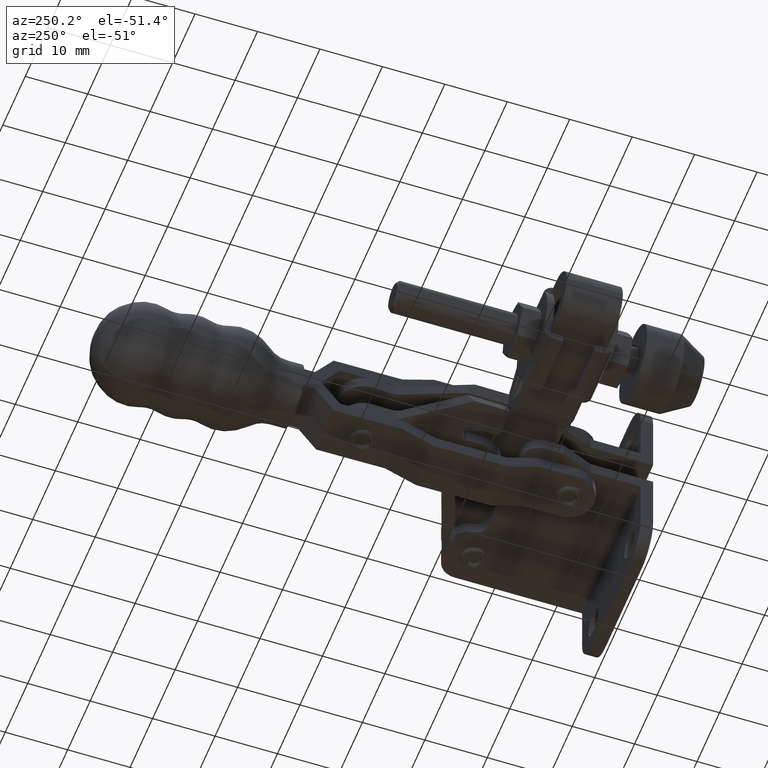
[diagram: clean part render]
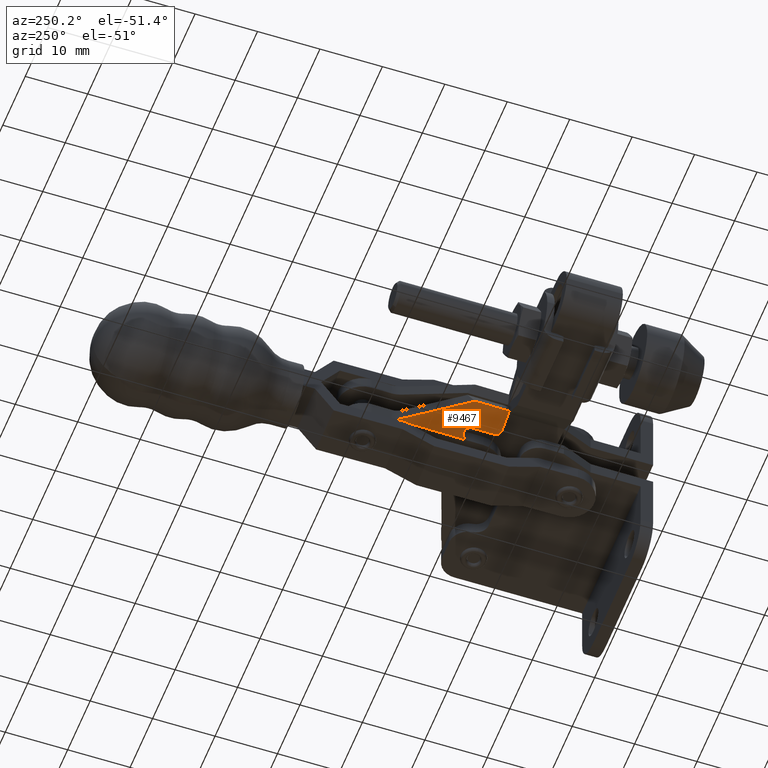
[diagram: same view with one face highlighted and labeled with its STEP entity id]
A machine part, auxiliary view. The second image highlights one B-rep face of the part: STEP entity #9467.
In plain terms, the highlighted planar face has unit normal (0.3161, 0.0037, 0.9487).
Its self-contained STEP definition (entity closure, byte-faithful):
#95 = VERTEX_POINT ( 'NONE', #10009 ) ;
#97 =( BOUNDED_CURVE ( )  B_SPLINE_CURVE ( 3, ( #367, #407, #1262, #7343 ),
 .UNSPECIFIED., .F., .F. ) 
 B_SPLINE_CURVE_WITH_KNOTS ( ( 4, 4 ),
 ( 6.132617034399753900, 7.853981633974481000 ),
 .UNSPECIFIED. ) 
 CURVE ( )  GEOMETRIC_REPRESENTATION_ITEM ( )  RATIONAL_B_SPLINE_CURVE ( ( 1.000000000000000000, 0.7679468270127151100, 0.7679468270127151100, 1.000000000000000000 ) ) 
 REPRESENTATION_ITEM ( '' )  );
#147 = VECTOR ( 'NONE', #5160, 1000.000000000000100 ) ;
#367 = CARTESIAN_POINT ( 'NONE',  ( -27.49085013601326800, 26.18925056405810300, -5.333525268372822500 ) ) ;
#407 = CARTESIAN_POINT ( 'NONE',  ( -27.38443487788737900, 25.53962755610695000, -5.366429856938606400 ) ) ;
#467 = VERTEX_POINT ( 'NONE', #4503 ) ;
#711 = EDGE_CURVE ( 'NONE', #10966, #95, #5723, .T. ) ;
#839 = EDGE_CURVE ( 'NONE', #95, #8263, #8077, .T. ) ;
#864 = ORIENTED_EDGE ( 'NONE', *, *, #839, .T. ) ;
#1136 = ORIENTED_EDGE ( 'NONE', *, *, #3941, .T. ) ;
#1262 = CARTESIAN_POINT ( 'NONE',  ( -27.80766165270407700, 25.03543180374507700, -5.223422074994987300 ) ) ;
#1410 = ORIENTED_EDGE ( 'NONE', *, *, #7403, .T. ) ;
#1540 = CARTESIAN_POINT ( 'NONE',  ( -28.46589711249520600, 25.02766397939934300, -5.004058151227636300 ) ) ;
#1580 = CARTESIAN_POINT ( 'NONE',  ( -25.55412023877966400, 31.56247839332357300, -6.000000000002127200 ) ) ;
#2009 = VERTEX_POINT ( 'NONE', #8705 ) ;
#2584 = LINE ( 'NONE', #9673, #6901 ) ;
#2954 =( BOUNDED_CURVE ( )  B_SPLINE_CURVE ( 3, ( #8575, #1580, #4262, #10319 ),
 .UNSPECIFIED., .F., .F. ) 
 B_SPLINE_CURVE_WITH_KNOTS ( ( 4, 4 ),
 ( 6.533705053445050400E-016, 3.141592653588374700 ),
 .UNSPECIFIED. ) 
 CURVE ( )  GEOMETRIC_REPRESENTATION_ITEM ( )  RATIONAL_B_SPLINE_CURVE ( ( 1.000000000000000000, 0.3333333333338063300, 0.3333333333338063300, 1.000000000000000000 ) ) 
 REPRESENTATION_ITEM ( '' )  );
#3091 = CARTESIAN_POINT ( 'NONE',  ( -26.05874778953679900, 40.25088109058419400, -5.866015959647136800 ) ) ;
#3193 = ORIENTED_EDGE ( 'NONE', *, *, #711, .T. ) ;
#3195 = AXIS2_PLACEMENT_3D ( 'NONE', #4274, #5189, #11212 ) ;
#3207 = EDGE_CURVE ( 'NONE', #6747, #10966, #4230, .T. ) ;
#3433 = PLANE ( 'NONE',  #3195 ) ;
#3468 = ORIENTED_EDGE ( 'NONE', *, *, #7693, .T. ) ;
#3713 = DIRECTION ( 'NONE',  ( 0.01180015965535061200, -0.9999303756922819400, -3.621841566730173300E-016 ) ) ;
#3853 = CARTESIAN_POINT ( 'NONE',  ( -25.53051991946892900, 29.56261764193666500, -5.999999999999851700 ) ) ;
#3920 = VECTOR ( 'NONE', #11175, 1000.000000000000100 ) ;
#3941 = EDGE_CURVE ( 'NONE', #7362, #2009, #10827, .T. ) ;
#4230 = LINE ( 'NONE', #4770, #147 ) ;
#4262 = CARTESIAN_POINT ( 'NONE',  ( -27.55398099016659300, 31.53887807401426700, -5.333525268373767500 ) ) ;
#4274 = CARTESIAN_POINT ( 'NONE',  ( -25.75932501519302800, 48.95126762661198700, -5.999999999999843700 ) ) ;
#4437 = CARTESIAN_POINT ( 'NONE',  ( -25.75932501519302800, 48.95126762661198700, -5.999999999999843700 ) ) ;
#4497 = VECTOR ( 'NONE', #4506, 1000.000000000000200 ) ;
#4503 = CARTESIAN_POINT ( 'NONE',  ( -27.53038067085869400, 29.53901732262732000, -5.333525268372813600 ) ) ;
#4506 = DIRECTION ( 'NONE',  ( 0.01180015965535061200, -0.9999303756922819400, -3.621841566730173300E-016 ) ) ;
#4770 = CARTESIAN_POINT ( 'NONE',  ( -22.36316550384521300, 46.82842373696998100, -7.123300892087973700 ) ) ;
#4950 = CARTESIAN_POINT ( 'NONE',  ( -26.05874778953679900, 40.25088109058419400, -5.866015959647136800 ) ) ;
#5160 = DIRECTION ( 'NONE',  ( 0.4831666188577185600, 0.8599589442647021000, -0.1643795382665957100 ) ) ;
#5189 = DIRECTION ( 'NONE',  ( 0.3161238125396767500, 0.003730571197262970900, 0.9487106081329129700 ) ) ;
#5334 = DIRECTION ( 'NONE',  ( 0.01180015965535074000, -0.9999303756922819400, -4.053240582812141400E-016 ) ) ;
#5493 = ORIENTED_EDGE ( 'NONE', *, *, #3207, .T. ) ;
#5723 =( BOUNDED_CURVE ( )  B_SPLINE_CURVE ( 3, ( #4950, #9971, #11071, #6135 ),
 .UNSPECIFIED., .F., .F. ) 
 B_SPLINE_CURVE_WITH_KNOTS ( ( 4, 4 ),
 ( 5.759490480378332200, 6.283185307179586200 ),
 .UNSPECIFIED. ) 
 CURVE ( )  GEOMETRIC_REPRESENTATION_ITEM ( )  RATIONAL_B_SPLINE_CURVE ( ( 1.000000000000000000, 0.9772755968232163000, 0.9772755968232163000, 1.000000000000000000 ) ) 
 REPRESENTATION_ITEM ( '' )  );
#5752 = VECTOR ( 'NONE', #3713, 1000.000000000000200 ) ;
#6135 = CARTESIAN_POINT ( 'NONE',  ( -25.67441108991050000, 41.75577064332021100, -5.999999999999847200 ) ) ;
#6747 = VERTEX_POINT ( 'NONE', #10217 ) ;
#6901 = VECTOR ( 'NONE', #5334, 1000.000000000000100 ) ;
#6949 = EDGE_CURVE ( 'NONE', #6747, #2009, #11105, .T. ) ;
#7238 = FACE_OUTER_BOUND ( 'NONE', #7418, .T. ) ;
#7343 = CARTESIAN_POINT ( 'NONE',  ( -28.46589711249520600, 25.02766397939934300, -5.004058151227636300 ) ) ;
#7362 = VERTEX_POINT ( 'NONE', #1540 ) ;
#7403 = EDGE_CURVE ( 'NONE', #8263, #467, #2954, .T. ) ;
#7418 = EDGE_LOOP ( 'NONE', ( #1410, #10377, #3468, #1136, #10106, #5493, #3193, #864 ) ) ;
#7693 = EDGE_CURVE ( 'NONE', #8426, #7362, #97, .T. ) ;
#8077 = LINE ( 'NONE', #4437, #5752 ) ;
#8263 = VERTEX_POINT ( 'NONE', #3853 ) ;
#8426 = VERTEX_POINT ( 'NONE', #10137 ) ;
#8575 = CARTESIAN_POINT ( 'NONE',  ( -25.53051991946892900, 29.56261764193666500, -5.999999999999851700 ) ) ;
#8705 = CARTESIAN_POINT ( 'NONE',  ( -31.47700145518074400, 24.99212999338755400, -4.000575805116986000 ) ) ;
#9467 = ADVANCED_FACE ( 'NONE', ( #7238 ), #3433, .F. ) ;
#9673 = CARTESIAN_POINT ( 'NONE',  ( -27.75918576657595300, 48.92766730730130600, -5.333525268372813600 ) ) ;
#9686 = CARTESIAN_POINT ( 'NONE',  ( -31.75890726934677800, 48.88046666867988000, -4.000575805117095200 ) ) ;
#9971 = CARTESIAN_POINT ( 'NONE',  ( -25.79925092700976900, 40.71274380880409200, -5.954300151433127300 ) ) ;
#10009 = CARTESIAN_POINT ( 'NONE',  ( -25.67441108991050000, 41.75577064332021100, -5.999999999999847200 ) ) ;
#10106 = ORIENTED_EDGE ( 'NONE', *, *, #6949, .F. ) ;
#10137 = CARTESIAN_POINT ( 'NONE',  ( -27.49085013601326800, 26.18925056405810300, -5.333525268372822500 ) ) ;
#10163 = EDGE_CURVE ( 'NONE', #467, #8426, #2584, .T. ) ;
#10217 = CARTESIAN_POINT ( 'NONE',  ( -31.54190233328521500, 30.49174705969900100, -4.000575805116994800 ) ) ;
#10319 = CARTESIAN_POINT ( 'NONE',  ( -27.53038067085869400, 29.53901732262732000, -5.333525268372813600 ) ) ;
#10335 = CARTESIAN_POINT ( 'NONE',  ( -25.47741920102665600, 25.06293095131966500, -5.999999999999854300 ) ) ;
#10377 = ORIENTED_EDGE ( 'NONE', *, *, #10163, .T. ) ;
#10827 = LINE ( 'NONE', #10335, #3920 ) ;
#10966 = VERTEX_POINT ( 'NONE', #3091 ) ;
#11071 = CARTESIAN_POINT ( 'NONE',  ( -25.66815972446137200, 41.22603796302490100, -6.000000000002121000 ) ) ;
#11105 = LINE ( 'NONE', #9686, #4497 ) ;
#11175 = DIRECTION ( 'NONE',  ( -0.9486445548135968900, -0.01119493664269346000, 0.3161458239738088000 ) ) ;
#11212 = DIRECTION ( 'NONE',  ( -0.9486445548135970000, -0.01119493664269325700, 0.3161458239738088600 ) ) ;